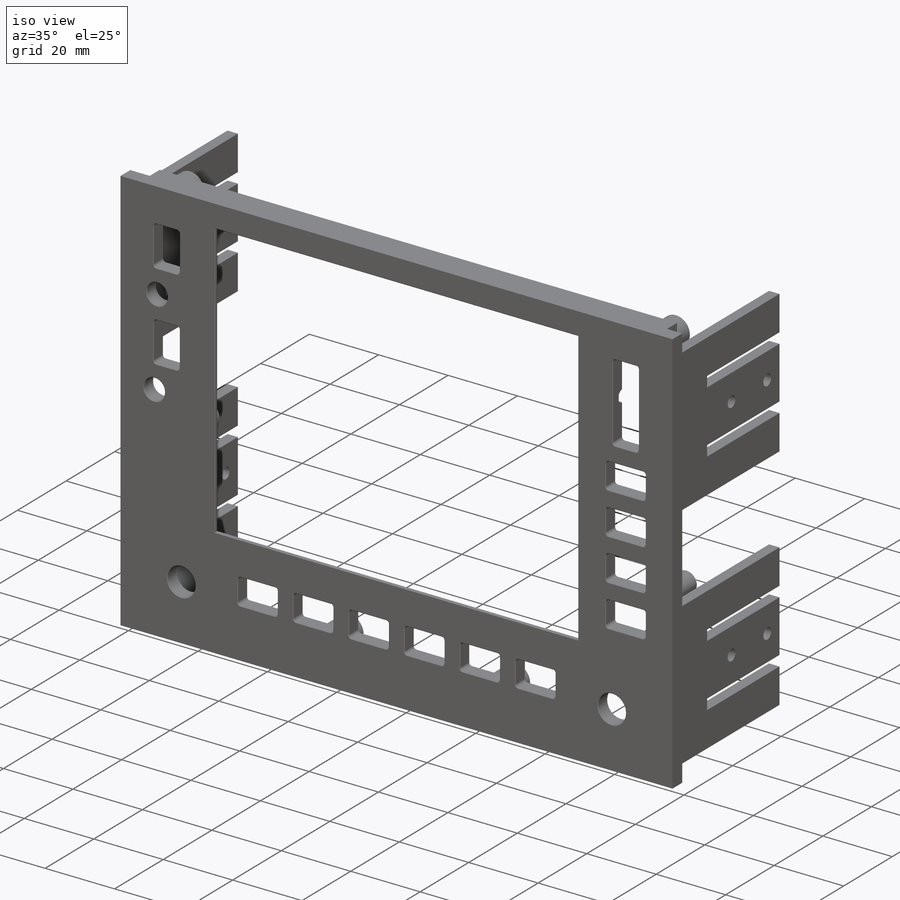
[diagram: iso view]
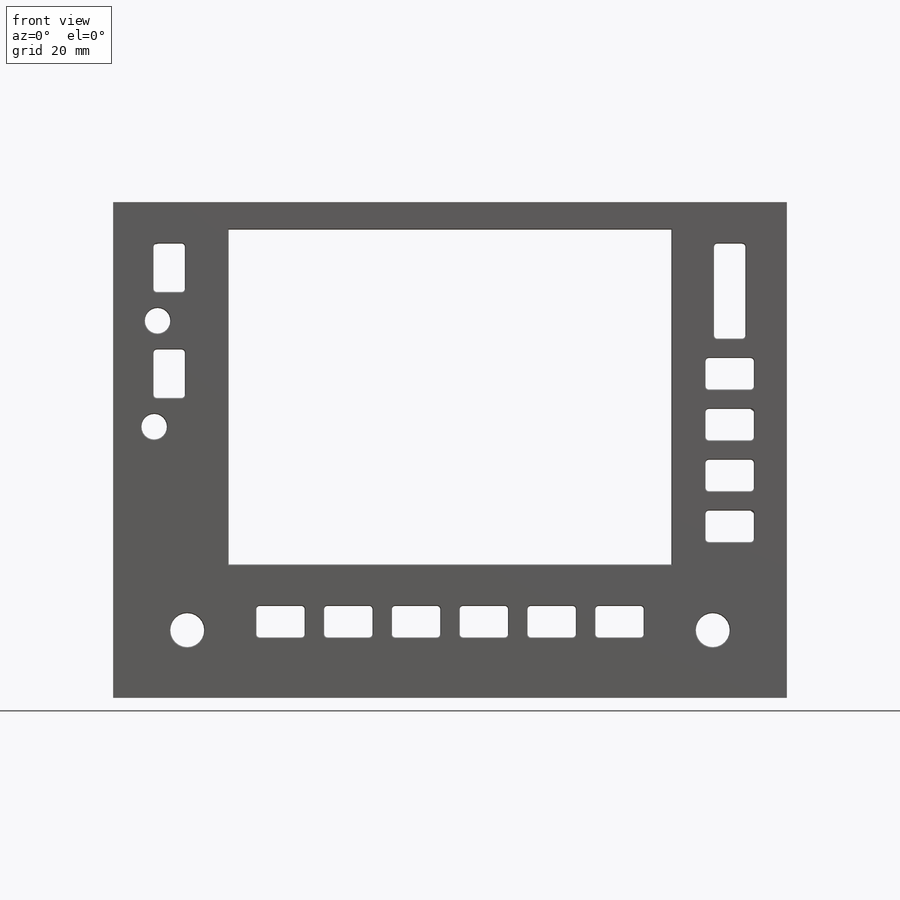
[diagram: front view]
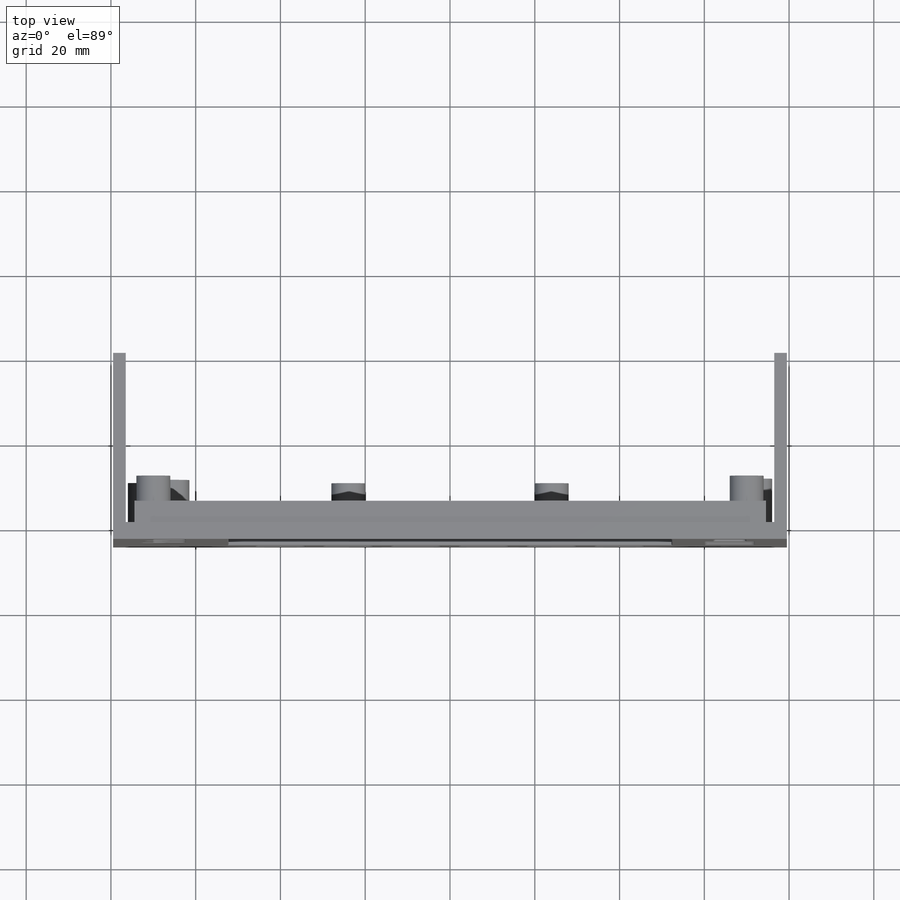
[diagram: top view]
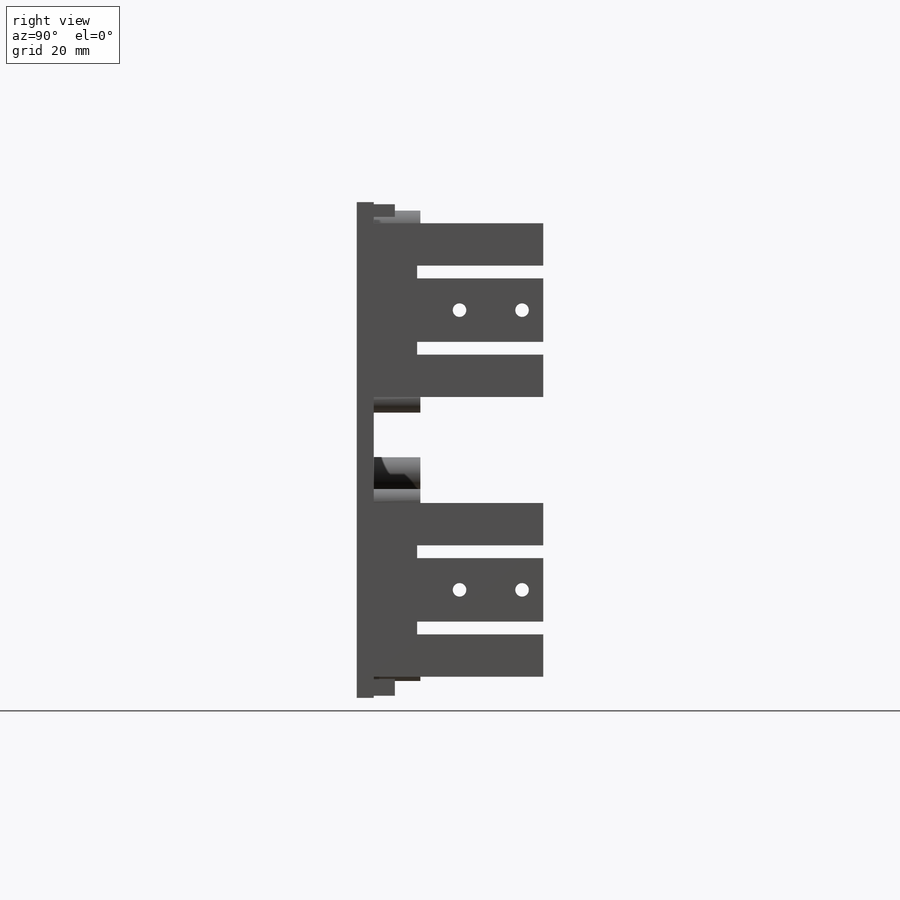
[diagram: right view]
SOLIDWORKS PART (.sldprt)
format: sldprt  version: not decoded by parser v0  size: 1,197,568 bytes
history: native  units: mm
features: sketch x11, cut_extrude x7, extrude x4, plane x3, chamfer x2, material x1 (+10 scaffold rows collapsed)
feature tree (38):
  scaffold x10  (default folders/planes/origin — collapsed)
  material  "Matériau <non spécifié>"
  plane  "Plan de face"
  plane  "Plan de dessus"
  plane  "Plan de droite"
  sketch  "Esquisse1"  dims[D1=160.0mm D2=117.0mm]
  extrude  "Boss.-Extru.1"  Depth=4mm
  sketch  "Esquisse3"  dims[c1.D1=104.5mm c1.D2=79.0mm c1.D3=40.0mm c1.D4=41.6mm c1.D5=15.0mm c2.D3=27.75mm c2.D4=27.75mm c2.D5=6.5mm]
  cut_extrude  "Enlèv. mat.-Extru.2"  Depth=4mm
  sketch  "Esquisse14"  dims[D1=3.0mm D2=3.0mm D3=41.0mm D4=41.0mm D5=5.0mm D6=5.0mm D7=3.0mm D8=41.0mm D9=3.0mm D10=41.0mm D11=5.0mm D12=5.0mm D13=0.5mm D14=0.5mm D15=0.5mm D16=0.5mm]
  extrude  "Boss.-Extru.3"  Depth=40mm
  sketch  "Esquisse15"  dims[D11=3.2mm D12=3.2mm D13=3.2mm D14=3.2mm D1=3.0mm D2=3.0mm D3=15.0mm D4=10.0mm D5=3.0mm D6=3.0mm D7=15.0mm D8=10.0mm D9=10.0mm D10=10.0mm D15=7.5mm D16=7.5mm D17=7.5mm D18=7.5mm D19=10.0mm D20=10.0mm D21=5.0mm D22=5.0mm]
  cut_extrude  "Enlèv. mat.-Extru.8"  [1 undecoded]
  sketch  "Esquisse16"  dims[D1=0.5mm D2=0.5mm]
  cut_extrude  "Enlèv. mat.-Extru.9"  [1 undecoded]
  sketch  "Esquisse9"  dims[c1.D1=9.7mm c1.D2=6.7mm c1.D3=4.2mm c1.D4=3.0mm c1.D5=~124.566667mm c2.D2=7.5mm c2.D3=4.8mm c2.D5=118.5mm c2.D6=89.0mm c2.D1=10.0mm c2.D7=~2.333333mm c2.D4=3.3mm c3.D7=34.1mm c3.D8=35.2mm c3.D1=7.0mm c3.D2=7.0mm c3.D3=7.5mm c3.D4=2.5mm]
  cut_extrude  "Enlèv. mat.-Extru.5"  Depth=3mm
  sketch  "Esquisse4"  dims[c1.D1=8.0mm c1.D2=8.0mm c1.D3=20.0mm c1.D4=18.0mm c1.D5=13.0mm c1.D6=13.0mm c2.D3=18.0mm c2.D5=16.0mm c2.D6=16.0mm c2.D7=17.5mm c2.D4=17.5mm]
  cut_extrude  "Enlèv. mat.-Extru.3"  Depth=4mm
  sketch  "Esquisse12"  dims[c1.D1=2.85mm c1.D2=2.85mm c1.D3=8.0mm c1.D4=8.0mm c1.D9=2.85mm c1.D10=2.85mm c1.D11=8.0mm c1.D12=8.0mm c1.D18=8.0mm c1.D19=2.85mm c1.D22=2.85mm c1.D23=8.0mm c1.D26=2.85mm c1.D27=6.0mm c1.D29=2.85mm c1.D30=6.0mm c1.D31=2.85mm c1.D35=8.0mm c1.D5=8.0mm c1.D6=8.0mm c1.D7=8.0mm c1.D8=8.0mm c1.D13=49.0mm c1.D14=~46.040833mm c1.D15=49.0mm c1.D16=8.0mm c1.D17=8.0mm c1.D20=6.0mm c1.D21=10.0mm c1.D24=6.0mm c1.D25=10.0mm c1.D28=40.5mm c2.D31=24.0mm c2.D32=6.5mm c2.D33=~6.500305mm c2.D28=~2.487652mm c2.D34=~2.487652mm c2.D13=48.0mm c2.D14=48.0mm c2.D15=48.0mm c2.D36=14.0mm c2.D37=18.0mm c2.D38=64.2mm c3.D28=~40.687652mm c3.D37=7.0mm c3.D32=24.0mm c3.D34=9.5mm c3.D21=6.5mm c4.D37=7.5mm c4.D5=7.5mm c4.D6=9.5mm]
  extrude  "Boss.-Extru.2"  Depth=11mm
  sketch  "Esquisse10"  dims[c1.D27=0.8mm c1.D43=0.8mm c1.D59=6.0mm c1.D62=6.0mm c1.D64=0.8mm c1.D30=1.0mm c1.D1=3.7mm c1.D2=3.7mm c1.D3=11.4mm c1.D4=11.4mm c1.D5=11.4mm c1.D6=11.4mm c1.D7=11.4mm c1.D8=11.4mm c1.D9=3.7mm c1.D10=3.7mm c1.D11=3.7mm c1.D12=3.7mm c1.D13=3.7mm c1.D14=3.7mm c1.D15=3.7mm c1.D16=3.7mm c1.D17=3.7mm c1.D18=3.7mm c1.D19=34.5mm c1.D20=5.0mm c1.D21=5.0mm c1.D22=5.0mm c1.D23=5.0mm c1.D24=5.0mm c1.D25=34.3mm c1.D26=18.0mm c1.D28=3.7mm c1.D29=3.7mm c2.D30=22.0mm c2.D31=0.0mm c2.D32=5.7mm c2.D33=5.7mm c2.D34=7.0mm c2.D35=5.0mm c2.D36=5.7mm c2.D37=7.0mm c2.D38=7.0mm c2.D39=5.0mm c2.D40=5.0mm c2.D41=7.0mm c2.D42=5.0mm c2.D44=7.0mm c2.D45=5.7mm c2.D46=5.7mm c2.D47=5.7mm c2.D48=5.7mm c2.D49=5.5mm c2.D50=5.7mm c3.D49=7.0mm c3.D51=3.7mm c3.D52=3.7mm c3.D53=11.0mm c3.D54=0.0mm c3.D55=14.0mm c3.D56=3.7mm c3.D57=3.7mm c3.D58=11.0mm c3.D60=7.0mm c3.D61=2.75mm c3.D63=7.0mm c3.D65=5.7mm c3.D66=5.7mm c3.D67=5.7mm c3.D68=5.7mm c3.D69=5.7mm c3.D70=5.7mm c3.D71=5.7mm c3.D72=5.7mm c3.D73=5.7mm c3.D74=5.7mm c3.D75=5.7mm c3.D76=5.7mm c3.D77=3.7mm c3.D78=3.7mm c3.D79=3.7mm c3.D80=3.7mm c3.D81=3.7mm c3.D82=3.7mm c3.D83=3.7mm c3.D84=3.7mm c3.D85=5.7mm c3.D86=5.7mm c3.D87=11.0mm c3.D88=5.7mm c3.D89=5.7mm c3.D90=12.5mm c4.D53=5.7mm c4.D60=5.7mm c4.D91=12.5mm c4.D55=12.5mm c4.D54=5.5mm c4.D58=16.0mm c4.D23=16.0mm c4.D22=16.0mm c4.D21=16.0mm c4.D20=16.0mm c4.D19=40.0mm c4.D24=40.0mm c4.D41=22.5mm c4.D39=12.0mm c4.D38=12.0mm c4.D34=12.0mm c4.D35=14.0mm c4.D30=14.0mm c4.D31=14.0mm c4.D37=15.5mm c4.D40=3.55mm c4.D42=13.25mm c5.D30=39.5mm c5.D24=39.5mm c5.D19=13.5mm c5.D25=5.8mm]
  cut_extrude  "Enlèv. mat.-Extru.6"  Depth=4mm
  sketch  "Esquisse11"  dims[D1=3.5mm D2=11.0mm D3=11.4mm]
  cut_extrude  "Enlèv. mat.-Extru.7"  Depth=1.5mm
  chamfer  "Chanfrein2"  Distance=0.2mm Angle=45deg
  chamfer  "Chanfrein3"  Distance=0.2mm Angle=45deg
  sketch  "Esquisse17"  dims[c1.D1=0.5mm c1.D2=5.0mm c1.D3=5.0mm c1.D4=4.0mm c1.D5=0.5mm c1.D6=3.0mm c1.D7=5.0mm c1.D8=5.0mm c2.D2=5.0mm]
  extrude  "Boss.-Extru.4"  Depth=5mm
decode coverage: 22 of 24 modeling features carry decoded parameters
note: ~ marks probable driven/reference dimensions
note: 2 parameter values undecoded
note: suppression state not decoded; provenance and decode notes live in map.json
